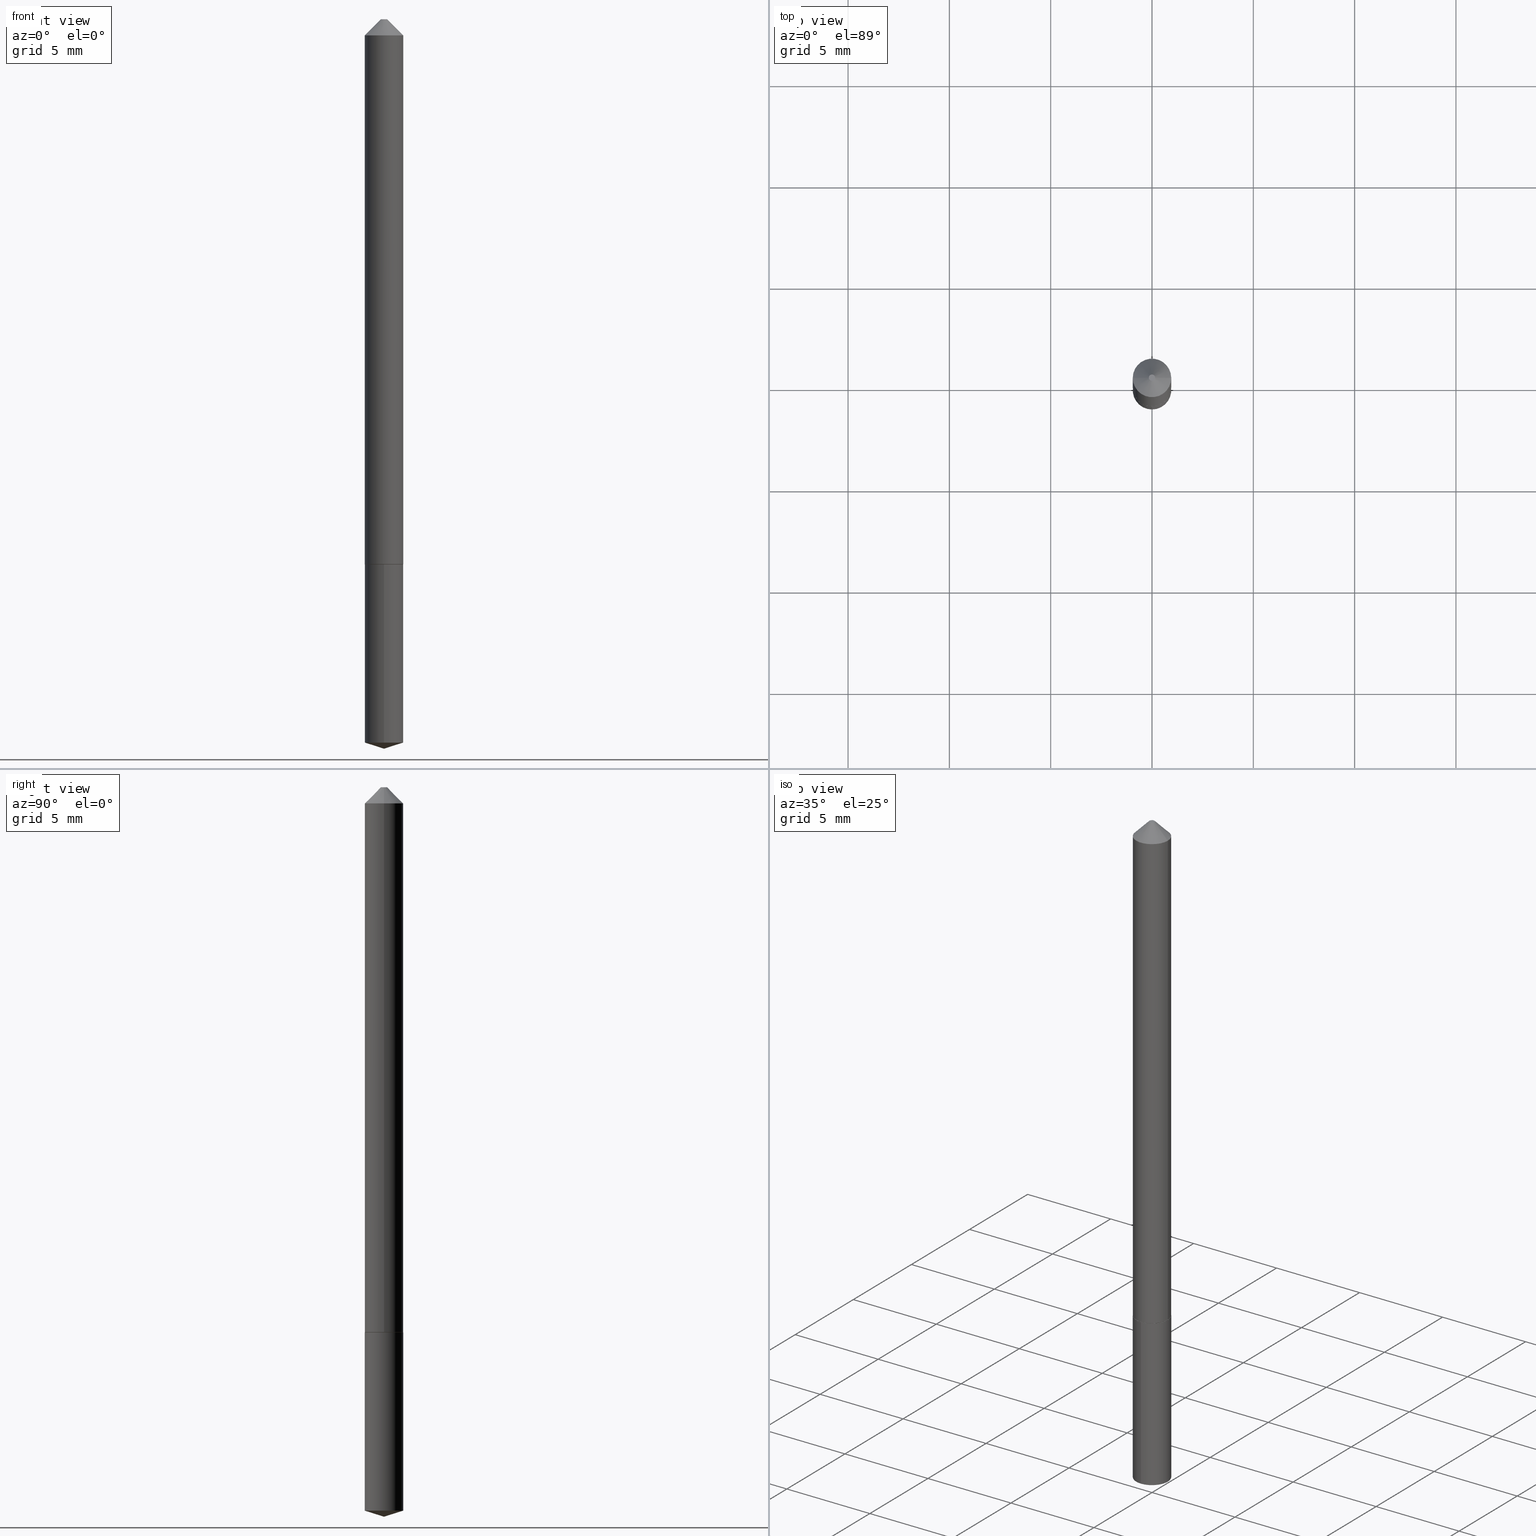
[diagram: canonical four-view strip — front | top / right | iso, engineering-drawing reading convention]
A machine part, canonical four-view strip (front | top / right | iso — engineering-drawing reading convention). The complete STEP part file that produces these views, byte-faithful:
ISO-10303-21;
HEADER;
FILE_DESCRIPTION (( 'STEP AP203' ),
    '1' );
FILE_NAME ('62049.STEP',
    '2024-04-23T05:11:26',
    ( '' ),
    ( '' ),
    'SwSTEP 2.0',
    'SolidWorks 2023',
    '' );
FILE_SCHEMA (( 'CONFIG_CONTROL_DESIGN' ));
ENDSEC;

DATA;
#1 = CARTESIAN_POINT ( 'NONE',  ( 3.437069595281901747E-29, -4.907384464809379320E-15, -1.405507825295926105 ) ) ;
#2 = VERTEX_POINT ( 'NONE', #275 ) ;
#3 = CARTESIAN_POINT ( 'NONE',  ( -0.03740000000000007208, 2.657429831742779816E-16, -1.839681723755338193E-30 ) ) ;
#4 = VERTEX_POINT ( 'NONE', #10 ) ;
#5 = CIRCLE ( 'NONE', #88, 0.03690000000000009245 ) ;
#6 = ORIENTED_EDGE ( 'NONE', *, *, #100, .F. ) ;
#7 = DIRECTION ( 'NONE',  ( 6.982962677686265922E-15, 1.000000000000000000, -3.491712563608626093E-15 ) ) ;
#8 = CARTESIAN_POINT ( 'NONE',  ( 0.000000000000000000, 0.000000000000000000, 0.000000000000000000 ) ) ;
#9 = DIRECTION ( 'NONE',  ( -2.445468806185136597E-29, 3.491481338843145583E-15, 1.000000000000000000 ) ) ;
#10 = CARTESIAN_POINT ( 'NONE',  ( -2.611628041454404664E-16, -0.03740000000000370112, -1.058999999999999719 ) ) ;
#11 = APPLICATION_PROTOCOL_DEFINITION ( 'international standard', 'config_control_design', 1994, #372 ) ;
#12 = AXIS2_PLACEMENT_3D ( 'NONE', #224, #345, #68 ) ;
#13 = VECTOR ( 'NONE', #329, 39.37007874015748854 ) ;
#14 = LOCAL_TIME ( 1, 11, 26.00000000000000000, #285 ) ;
#15 = ADVANCED_FACE ( 'NONE', ( #368 ), #194, .T. ) ;
#16 = EDGE_LOOP ( 'NONE', ( #305, #38, #373, #20 ) ) ;
#17 = CALENDAR_DATE ( 2024, 23, 4 ) ;
#18 = ORIENTED_EDGE ( 'NONE', *, *, #351, .T. ) ;
#19 = PERSON_AND_ORGANIZATION_ROLE ( 'design_owner' ) ;
#20 = ORIENTED_EDGE ( 'NONE', *, *, #247, .F. ) ;
#21 = CARTESIAN_POINT ( 'NONE',  ( 2.589751465750059705E-29, -3.697478737834891287E-15, -1.058999999999999941 ) ) ;
#22 = APPROVAL_STATUS ( 'not_yet_approved' ) ;
#23 = EDGE_CURVE ( 'NONE', #43, #92, #191, .T. ) ;
#24 = DIRECTION ( 'NONE',  ( -6.982962677686265922E-15, -1.000000000000000000, 3.652203200085913934E-15 ) ) ;
#25 = FACE_OUTER_BOUND ( 'NONE', #221, .T. ) ;
#26 = LINE ( 'NONE', #356, #109 ) ;
#27 = CARTESIAN_POINT ( 'NONE',  ( 7.642090019328601786E-31, -1.091087918388490144E-16, -0.03125000000000020123 ) ) ;
#28 = PERSON_AND_ORGANIZATION ( #286, #150 ) ;
#29 = CARTESIAN_POINT ( 'NONE',  ( 2.589751465750059705E-29, -3.697478737834891287E-15, -1.058999999999999941 ) ) ;
#30 = DIRECTION ( 'NONE',  ( 1.000000000000000000, -6.982962677686266711E-15, 4.876258493904629088E-29 ) ) ;
#31 = COORDINATED_UNIVERSAL_TIME_OFFSET ( 5, 0, .BEHIND. ) ;
#32 = AXIS2_PLACEMENT_3D ( 'NONE', #21, #103, #75 ) ;
#33 = CC_DESIGN_PERSON_AND_ORGANIZATION_ASSIGNMENT ( #320, #161, ( #183 ) ) ;
#34 = CC_DESIGN_APPROVAL ( #85, ( #111 ) ) ;
#35 = CARTESIAN_POINT ( 'NONE',  ( -0.03740000000000013453, -3.429990013991191210E-15, -1.058499999999999996 ) ) ;
#36 = PERSON_AND_ORGANIZATION_ROLE ( 'design_supplier' ) ;
#37 =( NAMED_UNIT ( * ) PLANE_ANGLE_UNIT ( ) SI_UNIT ( $, .RADIAN. ) );
#38 = ORIENTED_EDGE ( 'NONE', *, *, #240, .T. ) ;
#39 = AXIS2_PLACEMENT_3D ( 'NONE', #51, #132, #165 ) ;
#40 = EDGE_LOOP ( 'NONE', ( #45, #156 ) ) ;
#41 = PRODUCT_RELATED_PRODUCT_CATEGORY ( 'detail', '', ( #126 ) ) ;
#42 = CIRCLE ( 'NONE', #234, 0.03690000000000009245 ) ;
#43 = VERTEX_POINT ( 'NONE', #248 ) ;
#44 = DIRECTION ( 'NONE',  ( 2.445307342794385489E-29, -3.491712563608626093E-15, -1.000000000000000000 ) ) ;
#45 = ORIENTED_EDGE ( 'NONE', *, *, #23, .T. ) ;
#46 = ADVANCED_FACE ( 'NONE', ( #94 ), #184, .T. ) ;
#47 = ORIENTED_EDGE ( 'NONE', *, *, #137, .F. ) ;
#48 = CIRCLE ( 'NONE', #323, 0.03739999999999999575 ) ;
#49 = ORIENTED_EDGE ( 'NONE', *, *, #336, .F. ) ;
#50 = ORIENTED_EDGE ( 'NONE', *, *, #23, .F. ) ;
#51 = CARTESIAN_POINT ( 'NONE',  ( -9.280603754302692288E-28, 1.325204392178929016E-13, 37.95277874015748409 ) ) ;
#52 = CIRCLE ( 'NONE', #32, 0.03740000000000000269 ) ;
#53 = DIRECTION ( 'NONE',  ( -2.445468806185136597E-29, 3.491481338843145583E-15, 1.000000000000000000 ) ) ;
#54 = DIRECTION ( 'NONE',  ( 0.7071067811866500463, -2.468850131083331095E-15, 0.7071067811864448771 ) ) ;
#55 = DIRECTION ( 'NONE',  ( 1.000000000000000000, -6.982962677686265922E-15, 4.876176775795935793E-29 ) ) ;
#56 = DIRECTION ( 'NONE',  ( 0.7071067811865452413, -7.319954787623248157E-15, -0.7071067811865497932 ) ) ;
#57 = LINE ( 'NONE', #207, #369 ) ;
#58 = CLOSED_SHELL ( 'NONE', ( #46, #238, #325, #301, #283, #15, #366, #244 ) ) ;
#59 = CC_DESIGN_APPROVAL ( #292, ( #101 ) ) ;
#60 = ORIENTED_EDGE ( 'NONE', *, *, #247, .T. ) ;
#61 = CIRCLE ( 'NONE', #169, 0.03740000000000000269 ) ;
#62 = AXIS2_PLACEMENT_3D ( 'NONE', #343, #9, #189 ) ;
#63 = ORIENTED_EDGE ( 'NONE', *, *, #380, .F. ) ;
#64 = APPLICATION_PROTOCOL_DEFINITION ( 'international standard', 'config_control_design', 1994, #67 ) ;
#65 = DIRECTION ( 'NONE',  ( 1.000000000000000000, -6.982962677686266711E-15, 4.876258493904629088E-29 ) ) ;
#66 = EDGE_CURVE ( 'NONE', #333, #309, #158, .T. ) ;
#67 = APPLICATION_CONTEXT ( 'configuration controlled 3d designs of mechanical parts and assemblies' ) ;
#68 = DIRECTION ( 'NONE',  ( -1.000000000000000000, 6.982962677686266711E-15, 0.000000000000000000 ) ) ;
#69 = PERSON_AND_ORGANIZATION ( #286, #150 ) ;
#70 = PRODUCT_DEFINITION_SHAPE ( 'NONE', 'NONE',  #183 ) ;
#71 = ORIENTED_EDGE ( 'NONE', *, *, #336, .T. ) ;
#72 = APPROVAL_PERSON_ORGANIZATION ( #173, #292, #233 ) ;
#73 = VERTEX_POINT ( 'NONE', #107 ) ;
#74 = ADVANCED_FACE ( 'NONE', ( #236 ), #293, .T. ) ;
#75 = DIRECTION ( 'NONE',  ( -6.982962677686265922E-15, -1.000000000000000000, 3.652203200085913145E-15 ) ) ;
#76 = CARTESIAN_POINT ( 'NONE',  ( 2.589751465750059705E-29, -3.697478737834891287E-15, -1.058999999999999941 ) ) ;
#77 = DIRECTION ( 'NONE',  ( -6.982962677686265922E-15, -1.000000000000000000, 0.000000000000000000 ) ) ;
#78 = CARTESIAN_POINT ( 'NONE',  ( 2.588528731346966904E-29, -3.695732997165469783E-15, -1.058499999999999996 ) ) ;
#79 = CALENDAR_DATE ( 2024, 23, 4 ) ;
#80 = EDGE_CURVE ( 'NONE', #2, #120, #259, .T. ) ;
#81 = LINE ( 'NONE', #357, #143 ) ;
#82 = LINE ( 'NONE', #290, #219 ) ;
#83 = DIRECTION ( 'NONE',  ( -2.445468806185136597E-29, 3.491481338843145583E-15, 1.000000000000000000 ) ) ;
#84 = DIRECTION ( 'NONE',  ( -1.000000000000000000, 6.982962677686265922E-15, -4.876176775795935793E-29 ) ) ;
#85 = APPROVAL ( #254, 'UNSPECIFIED' ) ;
#86 = DIRECTION ( 'NONE',  ( -2.445307342794385489E-29, 3.491712563608626487E-15, 1.000000000000000000 ) ) ;
#87 = CLOSED_SHELL ( 'NONE', ( #162, #276, #168, #74, #318 ) ) ;
#88 = AXIS2_PLACEMENT_3D ( 'NONE', #93, #98, #287 ) ;
#89 = DIRECTION ( 'NONE',  ( -2.445468806185136877E-29, 3.491481338843145188E-15, 1.000000000000000000 ) ) ;
#90 = CC_DESIGN_PERSON_AND_ORGANIZATION_ASSIGNMENT ( #69, #19, ( #126 ) ) ;
#91 = ORIENTED_EDGE ( 'NONE', *, *, #380, .T. ) ;
#92 = VERTEX_POINT ( 'NONE', #170 ) ;
#93 = CARTESIAN_POINT ( 'NONE',  ( 2.589751465750059145E-29, -3.697478737834890498E-15, -1.058999999999999719 ) ) ;
#94 = FACE_OUTER_BOUND ( 'NONE', #153, .T. ) ;
#95 = LENGTH_MEASURE_WITH_UNIT ( LENGTH_MEASURE( 0.02539999999999999897 ), #272 );
#96 = EDGE_LOOP ( 'NONE', ( #315, #267, #63 ) ) ;
#97 = MANIFOLD_SOLID_BREP ( 'Body-Move/Copy2[2]', #58 ) ;
#98 = DIRECTION ( 'NONE',  ( -2.445468806185136597E-29, 3.491481338843145583E-15, 1.000000000000000000 ) ) ;
#99 = ORIENTED_EDGE ( 'NONE', *, *, #255, .T. ) ;
#100 = EDGE_CURVE ( 'NONE', #2, #163, #26, .T. ) ;
#101 = SECURITY_CLASSIFICATION ( '', '', #145 ) ;
#102 = CARTESIAN_POINT ( 'NONE',  ( 3.466079075160297844E-29, -4.948314482349217637E-15, -1.417300000000000004 ) ) ;
#103 = DIRECTION ( 'NONE',  ( -2.445307342794385489E-29, 3.491712563608626487E-15, 1.000000000000000000 ) ) ;
#104 = CYLINDRICAL_SURFACE ( 'NONE', #134, 0.03739999999999999575 ) ;
#105 = DIRECTION ( 'NONE',  ( -2.445468806185136597E-29, 3.491481338843145583E-15, 1.000000000000000000 ) ) ;
#106 = COORDINATED_UNIVERSAL_TIME_OFFSET ( 5, 0, .BEHIND. ) ;
#107 = CARTESIAN_POINT ( 'NONE',  ( -0.03740000000000000269, -1.636677911327879883E-15, -0.03125000000000020123 ) ) ;
#108 = COORDINATED_UNIVERSAL_TIME_OFFSET ( 5, 0, .BEHIND. ) ;
#109 = VECTOR ( 'NONE', #261, 39.37007874015748854 ) ;
#110 = CARTESIAN_POINT ( 'NONE',  ( 2.657429831743033238E-16, 0.03739999999999630426, -1.059000000000000163 ) ) ;
#111 = PRODUCT_DEFINITION_FORMATION_WITH_SPECIFIED_SOURCE ( 'ANY', '', #126, .NOT_KNOWN. ) ;
#112 = PLANE ( 'NONE',  #195 ) ;
#113 = FACE_OUTER_BOUND ( 'NONE', #348, .T. ) ;
#114 = CARTESIAN_POINT ( 'NONE',  ( 3.437069595281901747E-29, -4.907384464809379320E-15, -1.405507825295926105 ) ) ;
#115 = CARTESIAN_POINT ( 'NONE',  ( 2.589751465750059705E-29, -3.697478737834891287E-15, -1.058999999999999941 ) ) ;
#116 = AXIS2_PLACEMENT_3D ( 'NONE', #362, #302, #218 ) ;
#117 = ORIENTED_EDGE ( 'NONE', *, *, #351, .F. ) ;
#118 = CIRCLE ( 'NONE', #159, 0.03740000000000000269 ) ;
#119 = LOCAL_TIME ( 1, 11, 26.00000000000000000, #31 ) ;
#120 = VERTEX_POINT ( 'NONE', #232 ) ;
#121 = CARTESIAN_POINT ( 'NONE',  ( 0.03690000000000009245, -3.955150060641514680E-15, -1.058999999999999719 ) ) ;
#122 = ORIENTED_EDGE ( 'NONE', *, *, #146, .T. ) ;
#123 = AXIS2_PLACEMENT_3D ( 'NONE', #378, #260, #384 ) ;
#124 = APPROVAL_ROLE ( '' ) ;
#125 = CARTESIAN_POINT ( 'NONE',  ( 0.03740000000000013453, -3.956895801310936972E-15, -1.058499999999999996 ) ) ;
#126 = PRODUCT ( '62049', '62049', '', ( #199 ) ) ;
#127 = DATE_AND_TIME ( #17, #14 ) ;
#128 = ORIENTED_EDGE ( 'NONE', *, *, #308, .T. ) ;
#129 = APPROVAL ( #22, 'UNSPECIFIED' ) ;
#130 = PERSON_AND_ORGANIZATION ( #286, #150 ) ;
#131 = ORIENTED_EDGE ( 'NONE', *, *, #255, .F. ) ;
#132 = DIRECTION ( 'NONE',  ( -2.445307342794385489E-29, 3.491712563608626487E-15, 1.000000000000000000 ) ) ;
#133 = PERSON_AND_ORGANIZATION ( #286, #150 ) ;
#134 = AXIS2_PLACEMENT_3D ( 'NONE', #76, #86, #180 ) ;
#135 = CC_DESIGN_APPROVAL ( #129, ( #183 ) ) ;
#136 = CARTESIAN_POINT ( 'NONE',  ( 0.03740000000000013453, -3.956895801310936972E-15, -1.058499999999999996 ) ) ;
#137 = EDGE_CURVE ( 'NONE', #333, #251, #42, .T. ) ;
#138 = FACE_OUTER_BOUND ( 'NONE', #314, .T. ) ;
#139 = APPROVAL_DATE_TIME ( #142, #292 ) ;
#140 = UNCERTAINTY_MEASURE_WITH_UNIT (LENGTH_MEASURE( 1.000000000000000082E-05 ), #227, 'distance_accuracy_value', 'NONE');
#141 = FACE_OUTER_BOUND ( 'NONE', #281, .T. ) ;
#142 = DATE_AND_TIME ( #171, #331 ) ;
#143 = VECTOR ( 'NONE', #213, 39.37007874015748143 ) ;
#144 = DIRECTION ( 'NONE',  ( -2.445468806185136597E-29, 3.491481338843145583E-15, 1.000000000000000000 ) ) ;
#145 = SECURITY_CLASSIFICATION_LEVEL ( 'unclassified' ) ;
#146 = EDGE_CURVE ( 'NONE', #43, #73, #81, .T. ) ;
#147 = CARTESIAN_POINT ( 'NONE',  ( -2.611628041454319369E-16, -0.03740000000000490155, -1.405507825295926105 ) ) ;
#148 = CONICAL_SURFACE ( 'NONE', #39, 124.8659371009158576, 1.265363707695893458 ) ;
#149 = ORIENTED_EDGE ( 'NONE', *, *, #271, .F. ) ;
#150 = ORGANIZATION ( 'UNSPECIFIED', 'UNSPECIFIED', '' ) ;
#151 = EDGE_CURVE ( 'NONE', #309, #225, #57, .T. ) ;
#152 = ORIENTED_EDGE ( 'NONE', *, *, #340, .F. ) ;
#153 = EDGE_LOOP ( 'NONE', ( #149, #312, #198, #241 ) ) ;
#154 = EDGE_CURVE ( 'NONE', #251, #282, #200, .T. ) ;
#155 = ORIENTED_EDGE ( 'NONE', *, *, #240, .F. ) ;
#156 = ORIENTED_EDGE ( 'NONE', *, *, #271, .T. ) ;
#157 = DIRECTION ( 'NONE',  ( 1.000000000000000000, 0.000000000000000000, 0.000000000000000000 ) ) ;
#158 = LINE ( 'NONE', #125, #216 ) ;
#159 = AXIS2_PLACEMENT_3D ( 'NONE', #27, #144, #321 ) ;
#160 = CC_DESIGN_SECURITY_CLASSIFICATION ( #101, ( #111 ) ) ;
#161 = PERSON_AND_ORGANIZATION_ROLE ( 'creator' ) ;
#162 = ADVANCED_FACE ( 'NONE', ( #381 ), #104, .T. ) ;
#163 = VERTEX_POINT ( 'NONE', #147 ) ;
#164 = ORIENTED_EDGE ( 'NONE', *, *, #212, .T. ) ;
#165 = DIRECTION ( 'NONE',  ( -6.982962677686266711E-15, -1.000000000000000000, 3.500519750498682344E-15 ) ) ;
#166 = CARTESIAN_POINT ( 'NONE',  ( -0.03740000000000013453, -3.429990013991191210E-15, -1.058499999999999996 ) ) ;
#167 = CARTESIAN_POINT ( 'NONE',  ( 0.03740000000000000269, -3.702715959843154023E-16, -0.03125000000000020123 ) ) ;
#168 = ADVANCED_FACE ( 'NONE', ( #338 ), #242, .T. ) ;
#169 = AXIS2_PLACEMENT_3D ( 'NONE', #187, #295, #355 ) ;
#170 = CARTESIAN_POINT ( 'NONE',  ( 0.006150000000000001819, -2.039417398208996568E-16, 2.388061258345963269E-19 ) ) ;
#171 = CALENDAR_DATE ( 2024, 23, 4 ) ;
#172 = DIRECTION ( 'NONE',  ( -2.445307342794385489E-29, 3.491712563608626093E-15, 1.000000000000000000 ) ) ;
#173 = PERSON_AND_ORGANIZATION ( #286, #150 ) ;
#174 = AXIS2_PLACEMENT_3D ( 'NONE', #382, #105, #352 ) ;
#175 = DIRECTION ( 'NONE',  ( -1.000000000000000000, 6.982962677686266711E-15, 0.000000000000000000 ) ) ;
#176 = CARTESIAN_POINT ( 'NONE',  ( 2.589751465750059145E-29, -3.697478737834890498E-15, -1.058999999999999719 ) ) ;
#177 = CC_DESIGN_PERSON_AND_ORGANIZATION_ASSIGNMENT ( #28, #291, ( #101 ) ) ;
#178 = PERSON_AND_ORGANIZATION ( #286, #150 ) ;
#179 =( NAMED_UNIT ( * ) SI_UNIT ( $, .STERADIAN. ) SOLID_ANGLE_UNIT ( ) );
#180 = DIRECTION ( 'NONE',  ( -6.982962677686265922E-15, -1.000000000000000000, 3.652203200085913934E-15 ) ) ;
#181 = ORIENTED_EDGE ( 'NONE', *, *, #332, .T. ) ;
#182 = ORIENTED_EDGE ( 'NONE', *, *, #154, .F. ) ;
#183 = PRODUCT_DEFINITION ( 'UNKNOWN', '', #111, #237 ) ;
#184 = CONICAL_SURFACE ( 'NONE', #12, 0.03740000000000000269, 0.7853981633974450594 ) ;
#185 = AXIS2_PLACEMENT_3D ( 'NONE', #8, #344, #245 ) ;
#186 = AXIS2_PLACEMENT_3D ( 'NONE', #304, #266, #175 ) ;
#187 = CARTESIAN_POINT ( 'NONE',  ( 2.589751465750059705E-29, -3.697478737834891287E-15, -1.058999999999999941 ) ) ;
#188 = DIMENSIONAL_EXPONENTS ( 1.000000000000000000, 0.000000000000000000, 0.000000000000000000, 0.000000000000000000, 0.000000000000000000, 0.000000000000000000, 0.000000000000000000 ) ;
#189 = DIRECTION ( 'NONE',  ( 1.000000000000000000, -6.982962677686263555E-15, 0.000000000000000000 ) ) ;
#190 = VERTEX_POINT ( 'NONE', #265 ) ;
#191 = CIRCLE ( 'NONE', #273, 0.006150000000000001819 ) ;
#192 = ORIENTED_EDGE ( 'NONE', *, *, #137, .T. ) ;
#193 = ORIENTED_EDGE ( 'NONE', *, *, #220, .F. ) ;
#194 = CYLINDRICAL_SURFACE ( 'NONE', #185, 0.03740000000000007208 ) ;
#195 = AXIS2_PLACEMENT_3D ( 'NONE', #284, #386, #55 ) ;
#196 = VECTOR ( 'NONE', #89, 39.37007874015748143 ) ;
#197 = CARTESIAN_POINT ( 'NONE',  ( 0.03740000000000000269, -3.656914169555043632E-16, -0.03125000000000020123 ) ) ;
#198 = ORIENTED_EDGE ( 'NONE', *, *, #313, .T. ) ;
#199 = MECHANICAL_CONTEXT ( 'NONE', #67, 'mechanical' ) ;
#200 = LINE ( 'NONE', #166, #310 ) ;
#201 = CC_DESIGN_DATE_AND_TIME_ASSIGNMENT ( #231, #262, ( #101 ) ) ;
#202 = DIRECTION ( 'NONE',  ( -2.445468806185136597E-29, 3.491481338843145583E-15, 1.000000000000000000 ) ) ;
#203 = LINE ( 'NONE', #197, #354 ) ;
#204 = CARTESIAN_POINT ( 'NONE',  ( 0.000000000000000000, 0.000000000000000000, 0.000000000000000000 ) ) ;
#205 = CIRCLE ( 'NONE', #249, 0.006150000000000001819 ) ;
#206 = DIRECTION ( 'NONE',  ( -2.445307342794385489E-29, 3.491712563608626487E-15, 1.000000000000000000 ) ) ;
#207 = CARTESIAN_POINT ( 'NONE',  ( 0.03740000000000007208, -2.611628041454668440E-16, 1.823690114147683585E-30 ) ) ;
#208 = CARTESIAN_POINT ( 'NONE',  ( -2.919964657261593174E-48, 4.168935659749548932E-34, 1.194030629168669478E-19 ) ) ;
#209 = APPROVAL_DATE_TIME ( #296, #85 ) ;
#210 = LINE ( 'NONE', #110, #298 ) ;
#211 = FACE_OUTER_BOUND ( 'NONE', #252, .T. ) ;
#212 = EDGE_CURVE ( 'NONE', #309, #282, #342, .T. ) ;
#213 = DIRECTION ( 'NONE',  ( -0.7071067811865452413, 2.468850131082233000E-15, -0.7071067811865497932 ) ) ;
#214 = DIRECTION ( 'NONE',  ( 2.438088387897960049E-29, -3.491481338843145188E-15, -1.000000000000000000 ) ) ;
#215 = SHAPE_DEFINITION_REPRESENTATION ( #70, #257 ) ;
#216 = VECTOR ( 'NONE', #54, 39.37007874015748854 ) ;
#217 = EDGE_LOOP ( 'NONE', ( #47, #49 ) ) ;
#218 = DIRECTION ( 'NONE',  ( -6.982962677686266711E-15, -1.000000000000000000, 3.500519750498682344E-15 ) ) ;
#219 = VECTOR ( 'NONE', #172, 39.37007874015748143 ) ;
#220 = EDGE_CURVE ( 'NONE', #190, #4, #61, .T. ) ;
#221 = EDGE_LOOP ( 'NONE', ( #6, #341, #303 ) ) ;
#222 = CARTESIAN_POINT ( 'NONE',  ( -5.839929314523186348E-48, 8.337871319499097864E-34, 2.388061258337338955E-19 ) ) ;
#223 = DIRECTION ( 'NONE',  ( 0.000000000000000000, 0.000000000000000000, 1.000000000000000000 ) ) ;
#224 = CARTESIAN_POINT ( 'NONE',  ( 7.642090019328601786E-31, -1.091087918388490144E-16, -0.03125000000000020123 ) ) ;
#225 = VERTEX_POINT ( 'NONE', #167 ) ;
#226 = ORIENTED_EDGE ( 'NONE', *, *, #313, .F. ) ;
#227 =( CONVERSION_BASED_UNIT ( 'INCH', #95 ) LENGTH_UNIT ( ) NAMED_UNIT ( #188 ) );
#228 = CC_DESIGN_DATE_AND_TIME_ASSIGNMENT ( #127, #375, ( #183 ) ) ;
#229 = CARTESIAN_POINT ( 'NONE',  ( 0.000000000000000000, 0.000000000000000000, 0.000000000000000000 ) ) ;
#230 = CARTESIAN_POINT ( 'NONE',  ( -5.839929314523186348E-48, 8.337871319499097864E-34, 2.388061258337338955E-19 ) ) ;
#231 = DATE_AND_TIME ( #79, #243 ) ;
#232 = CARTESIAN_POINT ( 'NONE',  ( 2.657429831743117548E-16, 0.03739999999999508301, -1.405507825295926105 ) ) ;
#233 = APPROVAL_ROLE ( '' ) ;
#234 = AXIS2_PLACEMENT_3D ( 'NONE', #176, #83, #385 ) ;
#235 = CONICAL_SURFACE ( 'NONE', #62, 0.03740000000000013453, 0.7853981633975933851 ) ;
#236 = FACE_OUTER_BOUND ( 'NONE', #367, .T. ) ;
#237 = DESIGN_CONTEXT ( 'detailed design', #372, 'design' ) ;
#238 = ADVANCED_FACE ( 'NONE', ( #211 ), #239, .T. ) ;
#239 = CYLINDRICAL_SURFACE ( 'NONE', #364, 0.03740000000000007208 ) ;
#240 = EDGE_CURVE ( 'NONE', #282, #309, #306, .T. ) ;
#241 = ORIENTED_EDGE ( 'NONE', *, *, #146, .F. ) ;
#242 = CONICAL_SURFACE ( 'NONE', #116, 124.8659371009158576, 1.265363707695893458 ) ;
#243 = LOCAL_TIME ( 1, 11, 26.00000000000000000, #108 ) ;
#244 = ADVANCED_FACE ( 'NONE', ( #330 ), #358, .F. ) ;
#245 = DIRECTION ( 'NONE',  ( 1.000000000000000000, -6.982962677686265922E-15, 4.876176775795935793E-29 ) ) ;
#246 = FACE_OUTER_BOUND ( 'NONE', #346, .T. ) ;
#247 = EDGE_CURVE ( 'NONE', #73, #225, #118, .T. ) ;
#248 = CARTESIAN_POINT ( 'NONE',  ( -0.006150000000000001819, 9.749961638719398185E-17, 2.388061258332430723E-19 ) ) ;
#249 = AXIS2_PLACEMENT_3D ( 'NONE', #230, #53, #30 ) ;
#250 = COORDINATED_UNIVERSAL_TIME_OFFSET ( 5, 0, .BEHIND. ) ;
#251 = VERTEX_POINT ( 'NONE', #326 ) ;
#252 = EDGE_LOOP ( 'NONE', ( #164, #181, #226, #319 ) ) ;
#253 = AXIS2_PLACEMENT_3D ( 'NONE', #229, #223, #157 ) ;
#254 = APPROVAL_STATUS ( 'not_yet_approved' ) ;
#255 = EDGE_CURVE ( 'NONE', #163, #4, #82, .T. ) ;
#256 = DIRECTION ( 'NONE',  ( -2.445468806185136597E-29, 3.491481338843145583E-15, 1.000000000000000000 ) ) ;
#257 = ADVANCED_BREP_SHAPE_REPRESENTATION ( '62049', ( #363, #97, #253 ), #280 ) ;
#258 = DIRECTION ( 'NONE',  ( -6.982962677686265922E-15, -1.000000000000000000, 0.000000000000000000 ) ) ;
#259 = LINE ( 'NONE', #102, #13 ) ;
#260 = DIRECTION ( 'NONE',  ( -2.445468806185136597E-29, 3.491481338843145583E-15, 1.000000000000000000 ) ) ;
#261 = DIRECTION ( 'NONE',  ( -6.659769872151635244E-15, -0.9537169507482271547, 0.3007057995042720644 ) ) ;
#262 = DATE_TIME_ROLE ( 'classification_date' ) ;
#263 = DIRECTION ( 'NONE',  ( -2.445307342794385489E-29, 3.491712563608626093E-15, 1.000000000000000000 ) ) ;
#264 = CC_DESIGN_PERSON_AND_ORGANIZATION_ASSIGNMENT ( #322, #383, ( #111 ) ) ;
#265 = CARTESIAN_POINT ( 'NONE',  ( 2.657429831743119027E-16, 0.03739999999999631120, -1.059000000000000163 ) ) ;
#266 = DIRECTION ( 'NONE',  ( 2.445468806185136597E-29, -3.491481338843145583E-15, -1.000000000000000000 ) ) ;
#267 = ORIENTED_EDGE ( 'NONE', *, *, #100, .T. ) ;
#268 = LINE ( 'NONE', #3, #196 ) ;
#269 = DIRECTION ( 'NONE',  ( 1.000000000000000000, -6.982962677686263555E-15, 0.000000000000000000 ) ) ;
#270 = ORIENTED_EDGE ( 'NONE', *, *, #66, .T. ) ;
#271 = EDGE_CURVE ( 'NONE', #92, #43, #205, .T. ) ;
#272 =( LENGTH_UNIT ( ) NAMED_UNIT ( * ) SI_UNIT ( $, .METRE. ) );
#273 = AXIS2_PLACEMENT_3D ( 'NONE', #222, #277, #65 ) ;
#274 = AXIS2_PLACEMENT_3D ( 'NONE', #114, #206, #258 ) ;
#275 = CARTESIAN_POINT ( 'NONE',  ( 3.465734096942482755E-29, -4.948804216402506634E-15, -1.417300000000000004 ) ) ;
#276 = ADVANCED_FACE ( 'NONE', ( #25 ), #148, .T. ) ;
#277 = DIRECTION ( 'NONE',  ( -2.445468806185136597E-29, 3.491481338843145583E-15, 1.000000000000000000 ) ) ;
#278 = AXIS2_PLACEMENT_3D ( 'NONE', #29, #300, #24 ) ;
#279 = ORIENTED_EDGE ( 'NONE', *, *, #212, .F. ) ;
#280 =( GEOMETRIC_REPRESENTATION_CONTEXT ( 3 ) GLOBAL_UNCERTAINTY_ASSIGNED_CONTEXT ( ( #140 ) ) GLOBAL_UNIT_ASSIGNED_CONTEXT ( ( #227, #37, #179 ) ) REPRESENTATION_CONTEXT ( 'NONE', 'WORKASPACE' ) );
#281 = EDGE_LOOP ( 'NONE', ( #182, #71, #270, #155 ) ) ;
#282 = VERTEX_POINT ( 'NONE', #35 ) ;
#283 = ADVANCED_FACE ( 'NONE', ( #141 ), #347, .T. ) ;
#284 = CARTESIAN_POINT ( 'NONE',  ( 5.327136254793541416E-29, 2.226120823418634659E-16, -1.058999999999999719 ) ) ;
#285 = COORDINATED_UNIVERSAL_TIME_OFFSET ( 5, 0, .BEHIND. ) ;
#286 = PERSON ( 'UNSPECIFIED', 'UNSPECIFIED', 'UNSPECIFIED', ('UNSPECIFIED'), ('UNSPECIFIED'), ('UNSPECIFIED') ) ;
#287 = DIRECTION ( 'NONE',  ( 1.000000000000000000, -6.982962677686270655E-15, 0.000000000000000000 ) ) ;
#288 = DIRECTION ( 'NONE',  ( -0.7071067811866500463, 7.493145998870724925E-15, 0.7071067811864448771 ) ) ;
#289 = LOCAL_TIME ( 1, 11, 26.00000000000000000, #250 ) ;
#290 = CARTESIAN_POINT ( 'NONE',  ( -2.611628041454404171E-16, -0.03740000000000369418, -1.058999999999999719 ) ) ;
#291 = PERSON_AND_ORGANIZATION_ROLE ( 'classification_officer' ) ;
#292 = APPROVAL ( #294, 'UNSPECIFIED' ) ;
#293 = CYLINDRICAL_SURFACE ( 'NONE', #278, 0.03739999999999999575 ) ;
#294 = APPROVAL_STATUS ( 'not_yet_approved' ) ;
#295 = DIRECTION ( 'NONE',  ( -2.445307342794385489E-29, 3.491712563608626487E-15, 1.000000000000000000 ) ) ;
#296 = DATE_AND_TIME ( #327, #119 ) ;
#297 = AXIS2_PLACEMENT_3D ( 'NONE', #78, #256, #324 ) ;
#298 = VECTOR ( 'NONE', #263, 39.37007874015748143 ) ;
#299 = DIRECTION ( 'NONE',  ( -2.445307342794385489E-29, 3.491712563608626487E-15, 1.000000000000000000 ) ) ;
#300 = DIRECTION ( 'NONE',  ( -2.445307342794385489E-29, 3.491712563608626487E-15, 1.000000000000000000 ) ) ;
#301 = ADVANCED_FACE ( 'NONE', ( #350 ), #112, .F. ) ;
#302 = DIRECTION ( 'NONE',  ( -2.445307342794385489E-29, 3.491712563608626487E-15, 1.000000000000000000 ) ) ;
#303 = ORIENTED_EDGE ( 'NONE', *, *, #374, .F. ) ;
#304 = CARTESIAN_POINT ( 'NONE',  ( 7.642090019328601786E-31, -1.091087918388490144E-16, -0.03125000000000020123 ) ) ;
#305 = ORIENTED_EDGE ( 'NONE', *, *, #332, .F. ) ;
#306 = CIRCLE ( 'NONE', #297, 0.03740000000000013453 ) ;
#307 = ORIENTED_EDGE ( 'NONE', *, *, #374, .T. ) ;
#308 = EDGE_CURVE ( 'NONE', #4, #190, #52, .T. ) ;
#309 = VERTEX_POINT ( 'NONE', #136 ) ;
#310 = VECTOR ( 'NONE', #288, 39.37007874015748854 ) ;
#311 = APPROVAL_PERSON_ORGANIZATION ( #130, #129, #124 ) ;
#312 = ORIENTED_EDGE ( 'NONE', *, *, #340, .T. ) ;
#313 = EDGE_CURVE ( 'NONE', #225, #73, #353, .T. ) ;
#314 = EDGE_LOOP ( 'NONE', ( #128, #388 ) ) ;
#315 = ORIENTED_EDGE ( 'NONE', *, *, #80, .F. ) ;
#316 = DATE_AND_TIME ( #371, #289 ) ;
#317 = ORIENTED_EDGE ( 'NONE', *, *, #66, .F. ) ;
#318 = ADVANCED_FACE ( 'NONE', ( #138 ), #339, .F. ) ;
#319 = ORIENTED_EDGE ( 'NONE', *, *, #151, .F. ) ;
#320 = PERSON_AND_ORGANIZATION ( #286, #150 ) ;
#321 = DIRECTION ( 'NONE',  ( 1.000000000000000000, -6.982962677686266711E-15, 0.000000000000000000 ) ) ;
#322 = PERSON_AND_ORGANIZATION ( #286, #150 ) ;
#323 = AXIS2_PLACEMENT_3D ( 'NONE', #1, #299, #77 ) ;
#324 = DIRECTION ( 'NONE',  ( 1.000000000000000000, -6.982962677686263555E-15, 0.000000000000000000 ) ) ;
#325 = ADVANCED_FACE ( 'NONE', ( #246 ), #235, .T. ) ;
#326 = CARTESIAN_POINT ( 'NONE',  ( -0.03690000000000009245, -3.432639241165302411E-15, -1.058999999999999719 ) ) ;
#327 = CALENDAR_DATE ( 2024, 23, 4 ) ;
#328 = DIRECTION ( 'NONE',  ( 1.000000000000000000, -6.982962677686265922E-15, 4.876176775795935793E-29 ) ) ;
#329 = DIRECTION ( 'NONE',  ( 6.776566513254261293E-15, 0.9537169507482292641, 0.3007057995042654586 ) ) ;
#330 = FACE_OUTER_BOUND ( 'NONE', #40, .T. ) ;
#331 = LOCAL_TIME ( 1, 11, 26.00000000000000000, #106 ) ;
#332 = EDGE_CURVE ( 'NONE', #282, #73, #268, .T. ) ;
#333 = VERTEX_POINT ( 'NONE', #121 ) ;
#334 = DIRECTION ( 'NONE',  ( -2.445468806185136597E-29, 3.491481338843145583E-15, 1.000000000000000000 ) ) ;
#335 = EDGE_LOOP ( 'NONE', ( #307, #18, #376, #131 ) ) ;
#336 = EDGE_CURVE ( 'NONE', #251, #333, #5, .T. ) ;
#337 = APPROVAL_PERSON_ORGANIZATION ( #133, #85, #379 ) ;
#338 = FACE_OUTER_BOUND ( 'NONE', #96, .T. ) ;
#339 = PLANE ( 'NONE',  #360 ) ;
#340 = EDGE_CURVE ( 'NONE', #92, #225, #203, .T. ) ;
#341 = ORIENTED_EDGE ( 'NONE', *, *, #80, .T. ) ;
#342 = CIRCLE ( 'NONE', #359, 0.03740000000000013453 ) ;
#343 = CARTESIAN_POINT ( 'NONE',  ( 2.588528731346966904E-29, -3.695732997165469783E-15, -1.058499999999999996 ) ) ;
#344 = DIRECTION ( 'NONE',  ( -2.445468806185136597E-29, 3.491481338843145583E-15, 1.000000000000000000 ) ) ;
#345 = DIRECTION ( 'NONE',  ( 2.445468806185136597E-29, -3.491481338843145583E-15, -1.000000000000000000 ) ) ;
#346 = EDGE_LOOP ( 'NONE', ( #192, #370, #279, #317 ) ) ;
#347 = CONICAL_SURFACE ( 'NONE', #123, 0.03740000000000013453, 0.7853981633975933851 ) ;
#348 = EDGE_LOOP ( 'NONE', ( #152, #50, #122, #60 ) ) ;
#349 = DIRECTION ( 'NONE',  ( -2.445468806185136877E-29, 3.491481338843145188E-15, 1.000000000000000000 ) ) ;
#350 = FACE_OUTER_BOUND ( 'NONE', #217, .T. ) ;
#351 = EDGE_CURVE ( 'NONE', #120, #190, #210, .T. ) ;
#352 = DIRECTION ( 'NONE',  ( 1.000000000000000000, -6.982962677686266711E-15, 0.000000000000000000 ) ) ;
#353 = CIRCLE ( 'NONE', #174, 0.03740000000000000269 ) ;
#354 = VECTOR ( 'NONE', #56, 39.37007874015748143 ) ;
#355 = DIRECTION ( 'NONE',  ( -6.982962677686265922E-15, -1.000000000000000000, 3.652203200085913145E-15 ) ) ;
#356 = CARTESIAN_POINT ( 'NONE',  ( 3.465734096942482755E-29, -4.948804216402506634E-15, -1.417300000000000004 ) ) ;
#357 = CARTESIAN_POINT ( 'NONE',  ( -0.03740000000000000269, 1.520540123066173982E-16, -0.03125000000000020123 ) ) ;
#358 = PLANE ( 'NONE',  #389 ) ;
#359 = AXIS2_PLACEMENT_3D ( 'NONE', #361, #334, #269 ) ;
#360 = AXIS2_PLACEMENT_3D ( 'NONE', #115, #44, #7 ) ;
#361 = CARTESIAN_POINT ( 'NONE',  ( 2.588528731346966904E-29, -3.695732997165469783E-15, -1.058499999999999996 ) ) ;
#362 = CARTESIAN_POINT ( 'NONE',  ( -9.280603754302692288E-28, 1.325204392178929016E-13, 37.95277874015748409 ) ) ;
#363 = MANIFOLD_SOLID_BREP ( 'Body-Move/Copy2[1]', #87 ) ;
#364 = AXIS2_PLACEMENT_3D ( 'NONE', #204, #202, #328 ) ;
#365 = CONICAL_SURFACE ( 'NONE', #186, 0.03740000000000000269, 0.7853981633974450594 ) ;
#366 = ADVANCED_FACE ( 'NONE', ( #113 ), #365, .T. ) ;
#367 = EDGE_LOOP ( 'NONE', ( #117, #91, #99, #193 ) ) ;
#368 = FACE_OUTER_BOUND ( 'NONE', #16, .T. ) ;
#369 = VECTOR ( 'NONE', #349, 39.37007874015748143 ) ;
#370 = ORIENTED_EDGE ( 'NONE', *, *, #154, .T. ) ;
#371 = CALENDAR_DATE ( 2024, 23, 4 ) ;
#372 = APPLICATION_CONTEXT ( 'configuration controlled 3d designs of mechanical parts and assemblies' ) ;
#373 = ORIENTED_EDGE ( 'NONE', *, *, #151, .T. ) ;
#374 = EDGE_CURVE ( 'NONE', #163, #120, #48, .T. ) ;
#375 = DATE_TIME_ROLE ( 'creation_date' ) ;
#376 = ORIENTED_EDGE ( 'NONE', *, *, #308, .F. ) ;
#377 = APPROVAL_DATE_TIME ( #316, #129 ) ;
#378 = CARTESIAN_POINT ( 'NONE',  ( 2.588528731346966904E-29, -3.695732997165469783E-15, -1.058499999999999996 ) ) ;
#379 = APPROVAL_ROLE ( '' ) ;
#380 = EDGE_CURVE ( 'NONE', #120, #163, #390, .T. ) ;
#381 = FACE_OUTER_BOUND ( 'NONE', #335, .T. ) ;
#382 = CARTESIAN_POINT ( 'NONE',  ( 7.642090019328601786E-31, -1.091087918388490144E-16, -0.03125000000000020123 ) ) ;
#383 = PERSON_AND_ORGANIZATION_ROLE ( 'creator' ) ;
#384 = DIRECTION ( 'NONE',  ( 1.000000000000000000, -6.982962677686263555E-15, 0.000000000000000000 ) ) ;
#385 = DIRECTION ( 'NONE',  ( 1.000000000000000000, -6.982962677686270655E-15, 0.000000000000000000 ) ) ;
#386 = DIRECTION ( 'NONE',  ( -2.438088387897960049E-29, 3.491481338843145188E-15, 1.000000000000000000 ) ) ;
#387 = CC_DESIGN_PERSON_AND_ORGANIZATION_ASSIGNMENT ( #178, #36, ( #111 ) ) ;
#388 = ORIENTED_EDGE ( 'NONE', *, *, #220, .T. ) ;
#389 = AXIS2_PLACEMENT_3D ( 'NONE', #208, #214, #84 ) ;
#390 = CIRCLE ( 'NONE', #274, 0.03739999999999999575 ) ;
ENDSEC;
END-ISO-10303-21;
